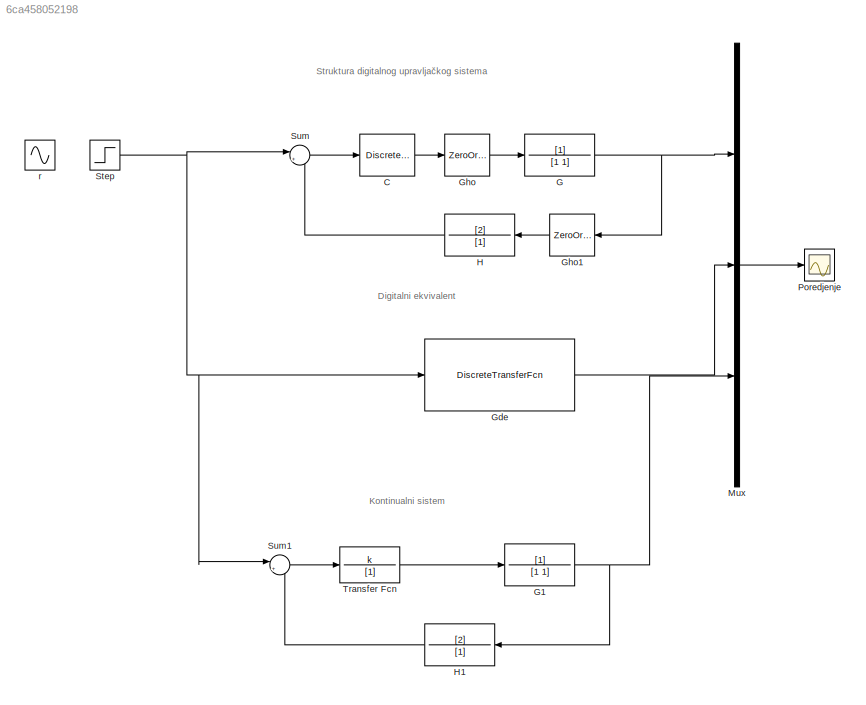
MODEL slx_6ca458052198
KIND model
CONFIG AbsTol = auto
CONFIG EnableMultiTasking = on
CONFIG FixedStep = auto
CONFIG MaxStep = 0.01
CONFIG MinStep = auto
CONFIG RelTol = 1e-3
CONFIG SampleTimeConstraint = Unconstrained
CONFIG Solver = VariableStepAuto
CONFIG SolverName = VariableStepAuto
CONFIG StartTime = 0.0
CONFIG StopTime = 10.0
BLOCK [DiscreteTransferFcn] C
  Denominator = [1]
  InputPortMap = u0
  Numerator = [k]
  Ports = [1, 1]
  SampleTime = T
BLOCK [TransferFcn] G
  Denominator = [1 1]
BLOCK [TransferFcn] G1
  Denominator = [1 1]
BLOCK [DiscreteTransferFcn] Gde
  Denominator = [1, 2*k-exp(-T)-2*k*exp(-T)]
  InputPortMap = u0
  Numerator = [k*(1-exp(-T))]
  Ports = [1, 1]
  SampleTime = T
BLOCK [ZeroOrderHold] Gho
  SampleTime = T
BLOCK [ZeroOrderHold] Gho1
  SampleTime = T
BLOCK [TransferFcn] H
  Denominator = [1]
  Numerator = [2]
BLOCK [TransferFcn] H1
  Denominator = [1]
  Numerator = [2]
BLOCK [Mux] Mux
  DisplayOption = bar
  Inputs = 3
  Ports = [3, 1]
BLOCK [Scope] Poredjenje
  NumInputPorts = 1
  Ports = [1]
  ScopeSpecificationString = Simulink.scopes.TimeScopeBlockCfg('CurrentConfiguration', extmgr.ConfigurationSet(extmgr.Configuration('Core','General UI',true),extmgr.Configuration('Core','Source UI',true),extmgr.Configuration('Sources','WiredSimulink',true),extmgr.Configuration('Visuals','Time Domain',true,'SerializedDisplays',{struct('MinYLimReal','-0.08813','MaxYLimReal','0.79314','YLabelReal','','MinYLimMag','0.00000','MaxY...<+1658ch>
BLOCK [Step] Step
  SampleTime = 0
BLOCK [Sum] Sum
  IconShape = round
  InputSameDT = off
  Inputs = |+-
  OutDataTypeStr = Inherit: Inherit via internal rule
  Ports = [2, 1]
  SaturateOnIntegerOverflow = off
BLOCK [Sum] Sum1
  IconShape = round
  InputSameDT = off
  Inputs = |+-
  OutDataTypeStr = Inherit: Inherit via internal rule
  Ports = [2, 1]
  SaturateOnIntegerOverflow = off
BLOCK [TransferFcn] Transfer Fcn
  Denominator = [1]
  Numerator = k
BLOCK [Sin] r
  Frequency = 0.5
  Ports = [0, 1]
  SampleTime = 0
ANNOTATION (root): Struktura digitalnog upravljačkog sistema
ANNOTATION (root): Digitalni ekvivalent
ANNOTATION (root): Kontinualni sistem
LINE C:1 -> Gho:1
NET G1:1 -> H1:1, Mux:3
NET G:1 -> Gho1:1, Mux:1
LINE Gde:1 -> Mux:2
LINE Gho1:1 -> H:1
LINE Gho:1 -> G:1
LINE H1:1 -> Sum1:2
LINE H:1 -> Sum:2
LINE Mux:1 -> Poredjenje:1
NET Step:1 -> Gde:1, Sum1:1, Sum:1
LINE Sum1:1 -> Transfer Fcn:1
LINE Sum:1 -> C:1
LINE Transfer Fcn:1 -> G1:1
note: NET lines group one-source signal fan-out (src -> all destinations, sorted); 1:1 wires keep LINE
